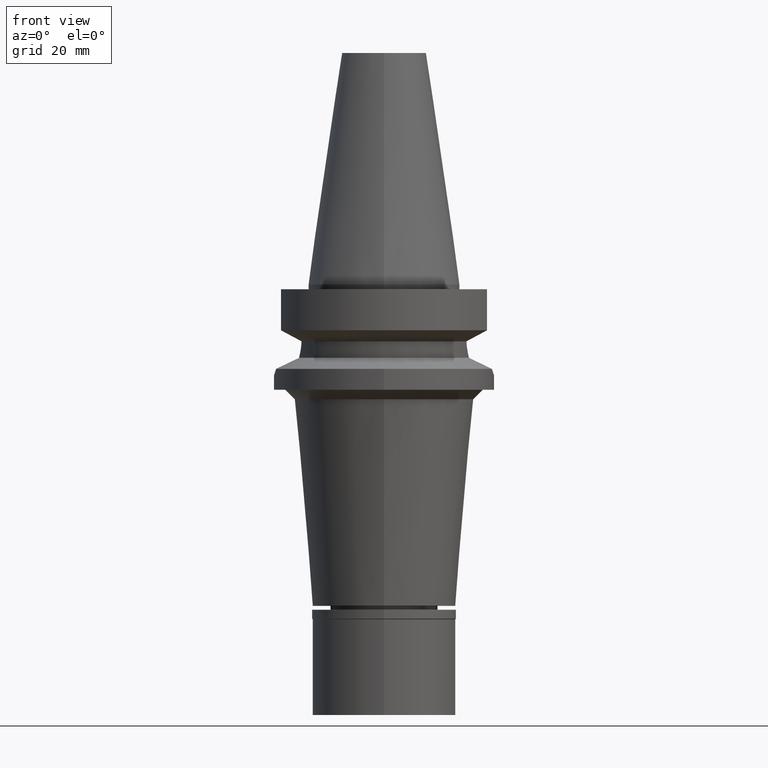
[diagram: clean part render]
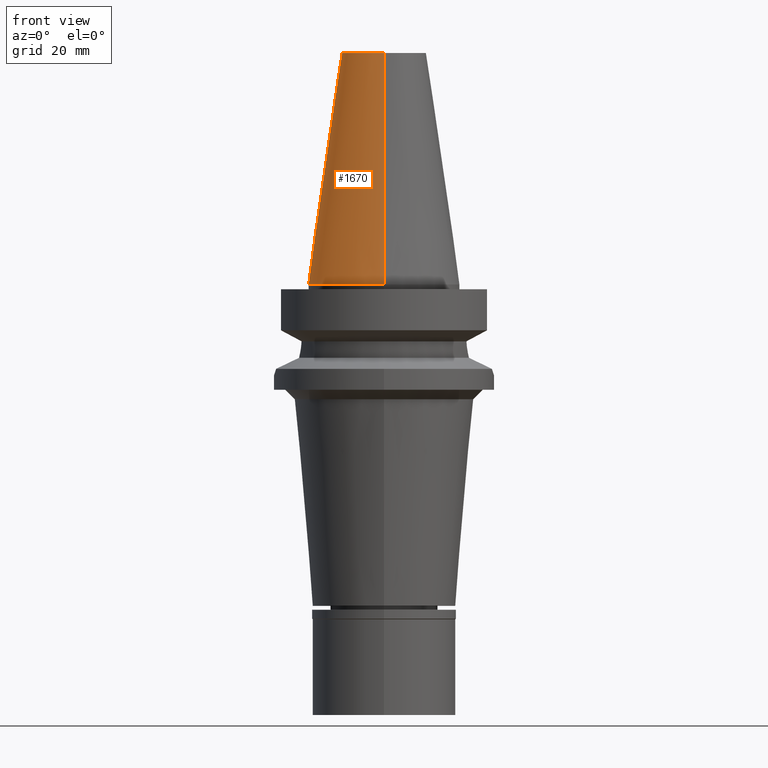
[diagram: same view with one face highlighted and labeled with its STEP entity id]
A machine part, front view. The second image highlights one B-rep face of the part: STEP entity #1670.
In plain terms, the highlighted conical surface has half-angle 8.297 deg.
Its self-contained STEP definition (entity closure, byte-faithful):
#5 = CARTESIAN_POINT ( 'NONE',  ( 0.0000000000000000000, -8.816791732783000768, 48.39999999999999858 ) ) ;
#57 = AXIS2_PLACEMENT_3D ( 'NONE', #1442, #1398, #2406 ) ;
#174 = DIRECTION ( 'NONE',  ( 0.0000000000000000000, 0.0000000000000000000, -1.000000000000000000 ) ) ;
#201 = VECTOR ( 'NONE', #945, 1000.000000000000114 ) ;
#353 = EDGE_CURVE ( 'NONE', #2674, #1677, #1435, .T. ) ;
#408 = CARTESIAN_POINT ( 'NONE',  ( 0.0000000000000000000, 0.0000000000000000000, 48.39999999999999858 ) ) ;
#432 = VERTEX_POINT ( 'NONE', #924 ) ;
#438 = AXIS2_PLACEMENT_3D ( 'NONE', #2003, #3008, #651 ) ;
#467 = EDGE_LOOP ( 'NONE', ( #864, #2232, #2616, #947 ) ) ;
#651 = DIRECTION ( 'NONE',  ( 0.0000000000000000000, -1.000000000000000000, 0.0000000000000000000 ) ) ;
#698 = CIRCLE ( 'NONE', #2386, 8.816791732783000768 ) ;
#726 = CARTESIAN_POINT ( 'NONE',  ( 0.0000000000000000000, 15.87500000000000000, -1.136868377215999875E-13 ) ) ;
#764 = EDGE_CURVE ( 'NONE', #432, #1677, #1916, .T. ) ;
#864 = ORIENTED_EDGE ( 'NONE', *, *, #764, .F. ) ;
#921 = DIRECTION ( 'NONE',  ( 0.0000000000000000000, -1.000000000000000000, 0.0000000000000000000 ) ) ;
#924 = CARTESIAN_POINT ( 'NONE',  ( 0.0000000000000000000, -15.87500000000000000, -3.410605131648000255E-13 ) ) ;
#945 = DIRECTION ( 'NONE',  ( 0.0000000000000000000, -0.1443043893539925626, -0.9895333461855498891 ) ) ;
#946 = FACE_OUTER_BOUND ( 'NONE', #467, .T. ) ;
#947 = ORIENTED_EDGE ( 'NONE', *, *, #353, .T. ) ;
#1388 = CONICAL_SURFACE ( 'NONE', #57, 12.34589586639000025, 0.1448099680379422438 ) ;
#1398 = DIRECTION ( 'NONE',  ( 0.0000000000000000000, 0.0000000000000000000, -1.000000000000000000 ) ) ;
#1435 = LINE ( 'NONE', #2087, #2217 ) ;
#1442 = CARTESIAN_POINT ( 'NONE',  ( 0.0000000000000000000, 0.0000000000000000000, 24.19999999999999929 ) ) ;
#1569 = EDGE_CURVE ( 'NONE', #2308, #432, #2594, .T. ) ;
#1670 = ADVANCED_FACE ( 'NONE', ( #946 ), #1388, .T. ) ;
#1677 = VERTEX_POINT ( 'NONE', #726 ) ;
#1916 = CIRCLE ( 'NONE', #438, 15.87500000000000000 ) ;
#2003 = CARTESIAN_POINT ( 'NONE',  ( 0.0000000000000000000, 0.0000000000000000000, -3.410605131648000255E-13 ) ) ;
#2087 = CARTESIAN_POINT ( 'NONE',  ( 0.0000000000000000000, 8.816791732783000768, 48.39999999999999858 ) ) ;
#2143 = CARTESIAN_POINT ( 'NONE',  ( 0.0000000000000000000, 8.816791732783000768, 48.39999999999999858 ) ) ;
#2217 = VECTOR ( 'NONE', #3032, 1000.000000000000114 ) ;
#2232 = ORIENTED_EDGE ( 'NONE', *, *, #1569, .F. ) ;
#2308 = VERTEX_POINT ( 'NONE', #2415 ) ;
#2386 = AXIS2_PLACEMENT_3D ( 'NONE', #408, #174, #921 ) ;
#2406 = DIRECTION ( 'NONE',  ( 0.0000000000000000000, -1.000000000000000000, 0.0000000000000000000 ) ) ;
#2415 = CARTESIAN_POINT ( 'NONE',  ( 0.0000000000000000000, -8.816791732783000768, 48.39999999999999858 ) ) ;
#2525 = EDGE_CURVE ( 'NONE', #2308, #2674, #698, .T. ) ;
#2594 = LINE ( 'NONE', #5, #201 ) ;
#2616 = ORIENTED_EDGE ( 'NONE', *, *, #2525, .T. ) ;
#2674 = VERTEX_POINT ( 'NONE', #2143 ) ;
#3008 = DIRECTION ( 'NONE',  ( 0.0000000000000000000, 0.0000000000000000000, -1.000000000000000000 ) ) ;
#3032 = DIRECTION ( 'NONE',  ( 0.0000000000000000000, 0.1443043893539925626, -0.9895333461855498891 ) ) ;